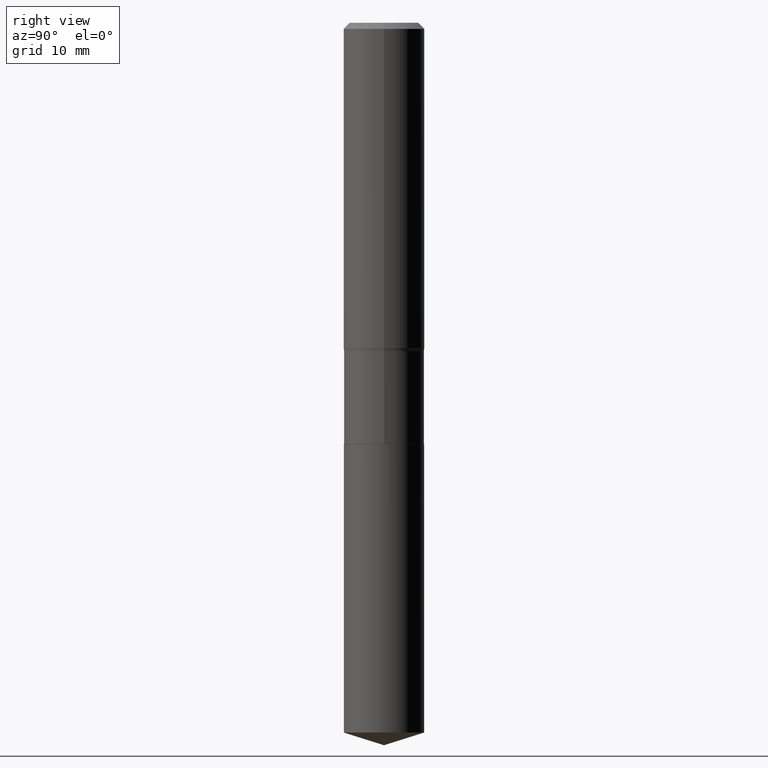
[diagram: clean part render]
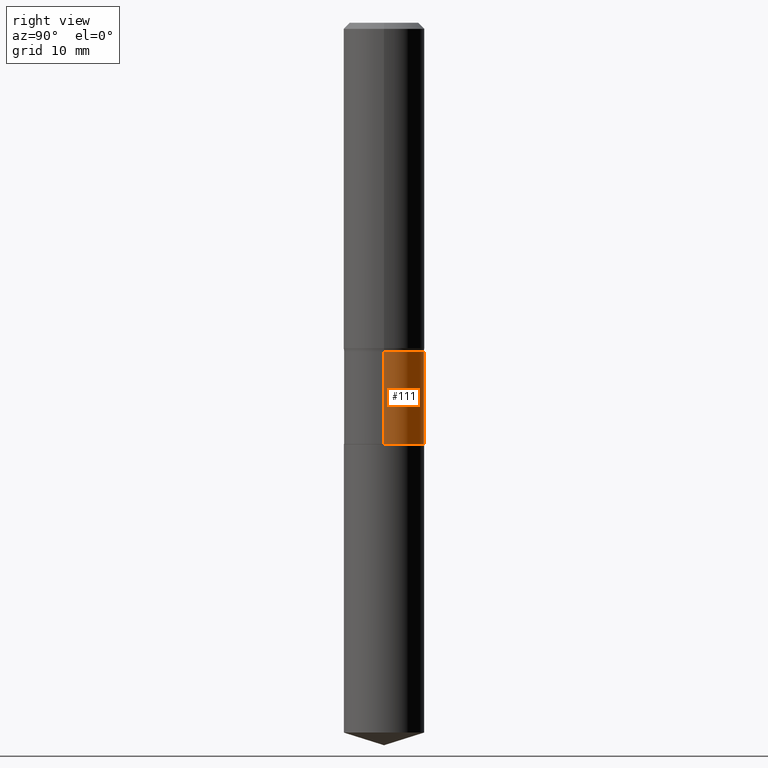
[diagram: same view with one face highlighted and labeled with its STEP entity id]
A machine part, right view. The second image highlights one B-rep face of the part: STEP entity #111.
In plain terms, the highlighted cylindrical surface (partial cylindrical patch) has radius 4.9505 mm, axis along (-0, 0, 1).
Its self-contained STEP definition (entity closure, byte-faithful):
#9 = CARTESIAN_POINT ( 'NONE',  ( 4.995603677274996933E-29, -7.132398078988777393E-15, -2.042799999999999727 ) ) ;
#32 = VERTEX_POINT ( 'NONE', #303 ) ;
#49 = DIRECTION ( 'NONE',  ( -2.445468806185136597E-29, 3.491481338843145583E-15, 1.000000000000000000 ) ) ;
#56 = CARTESIAN_POINT ( 'NONE',  ( -0.1948999999999999344, 1.384847791996434796E-15, -9.587004490906808522E-30 ) ) ;
#58 = ORIENTED_EDGE ( 'NONE', *, *, #288, .T. ) ;
#79 = AXIS2_PLACEMENT_3D ( 'NONE', #315, #49, #163 ) ;
#93 = CARTESIAN_POINT ( 'NONE',  ( -0.1948999999999999899, -4.965807615225361547E-15, -2.042799999999999727 ) ) ;
#98 = VERTEX_POINT ( 'NONE', #234 ) ;
#100 = VECTOR ( 'NONE', #210, 39.37007874015748143 ) ;
#101 = AXIS2_PLACEMENT_3D ( 'NONE', #9, #103, #486 ) ;
#103 = DIRECTION ( 'NONE',  ( -2.445468806185136597E-29, 3.491481338843145583E-15, 1.000000000000000000 ) ) ;
#104 = DIRECTION ( 'NONE',  ( -2.445468806185136877E-29, 3.491481338843145188E-15, 1.000000000000000000 ) ) ;
#111 = ADVANCED_FACE ( 'NONE', ( #166 ), #277, .T. ) ;
#132 = CARTESIAN_POINT ( 'NONE',  ( 0.1948999999999999344, -1.360979425881052894E-15, 9.503668536026277414E-30 ) ) ;
#134 = VERTEX_POINT ( 'NONE', #93 ) ;
#142 = ORIENTED_EDGE ( 'NONE', *, *, #180, .F. ) ;
#156 = EDGE_CURVE ( 'NONE', #134, #98, #240, .T. ) ;
#163 = DIRECTION ( 'NONE',  ( 1.000000000000000000, -6.982962677686267499E-15, 0.000000000000000000 ) ) ;
#165 = CIRCLE ( 'NONE', #79, 0.1948999999999999067 ) ;
#166 = FACE_OUTER_BOUND ( 'NONE', #281, .T. ) ;
#180 = EDGE_CURVE ( 'NONE', #32, #461, #469, .T. ) ;
#201 = AXIS2_PLACEMENT_3D ( 'NONE', #321, #245, #283 ) ;
#210 = DIRECTION ( 'NONE',  ( -2.445468806185136877E-29, 3.491481338843145188E-15, 1.000000000000000000 ) ) ;
#230 = ORIENTED_EDGE ( 'NONE', *, *, #439, .F. ) ;
#234 = CARTESIAN_POINT ( 'NONE',  ( -0.1948999999999999067, -4.965807615225362336E-15, -1.594999999999999751 ) ) ;
#240 = LINE ( 'NONE', #56, #100 ) ;
#245 = DIRECTION ( 'NONE',  ( -2.445468806185136597E-29, 3.491481338843145583E-15, 1.000000000000000000 ) ) ;
#260 = VECTOR ( 'NONE', #104, 39.37007874015748143 ) ;
#277 = CYLINDRICAL_SURFACE ( 'NONE', #201, 0.1948999999999999344 ) ;
#281 = EDGE_LOOP ( 'NONE', ( #58, #345, #230, #142 ) ) ;
#283 = DIRECTION ( 'NONE',  ( 1.000000000000000000, -6.982962677686266711E-15, 4.876176775795936914E-29 ) ) ;
#288 = EDGE_CURVE ( 'NONE', #32, #134, #470, .T. ) ;
#299 = CARTESIAN_POINT ( 'NONE',  ( 0.1948999999999999067, -6.929892161335869568E-15, -1.594999999999999751 ) ) ;
#303 = CARTESIAN_POINT ( 'NONE',  ( 0.1948999999999999899, -8.493377504869830484E-15, -2.042799999999999727 ) ) ;
#315 = CARTESIAN_POINT ( 'NONE',  ( 3.900522745865292334E-29, -5.568912735454817265E-15, -1.594999999999999751 ) ) ;
#321 = CARTESIAN_POINT ( 'NONE',  ( 0.000000000000000000, 0.000000000000000000, 0.000000000000000000 ) ) ;
#345 = ORIENTED_EDGE ( 'NONE', *, *, #156, .T. ) ;
#439 = EDGE_CURVE ( 'NONE', #461, #98, #165, .T. ) ;
#461 = VERTEX_POINT ( 'NONE', #299 ) ;
#469 = LINE ( 'NONE', #132, #260 ) ;
#470 = CIRCLE ( 'NONE', #101, 0.1948999999999999899 ) ;
#486 = DIRECTION ( 'NONE',  ( 1.000000000000000000, -6.982962677686264344E-15, 0.000000000000000000 ) ) ;